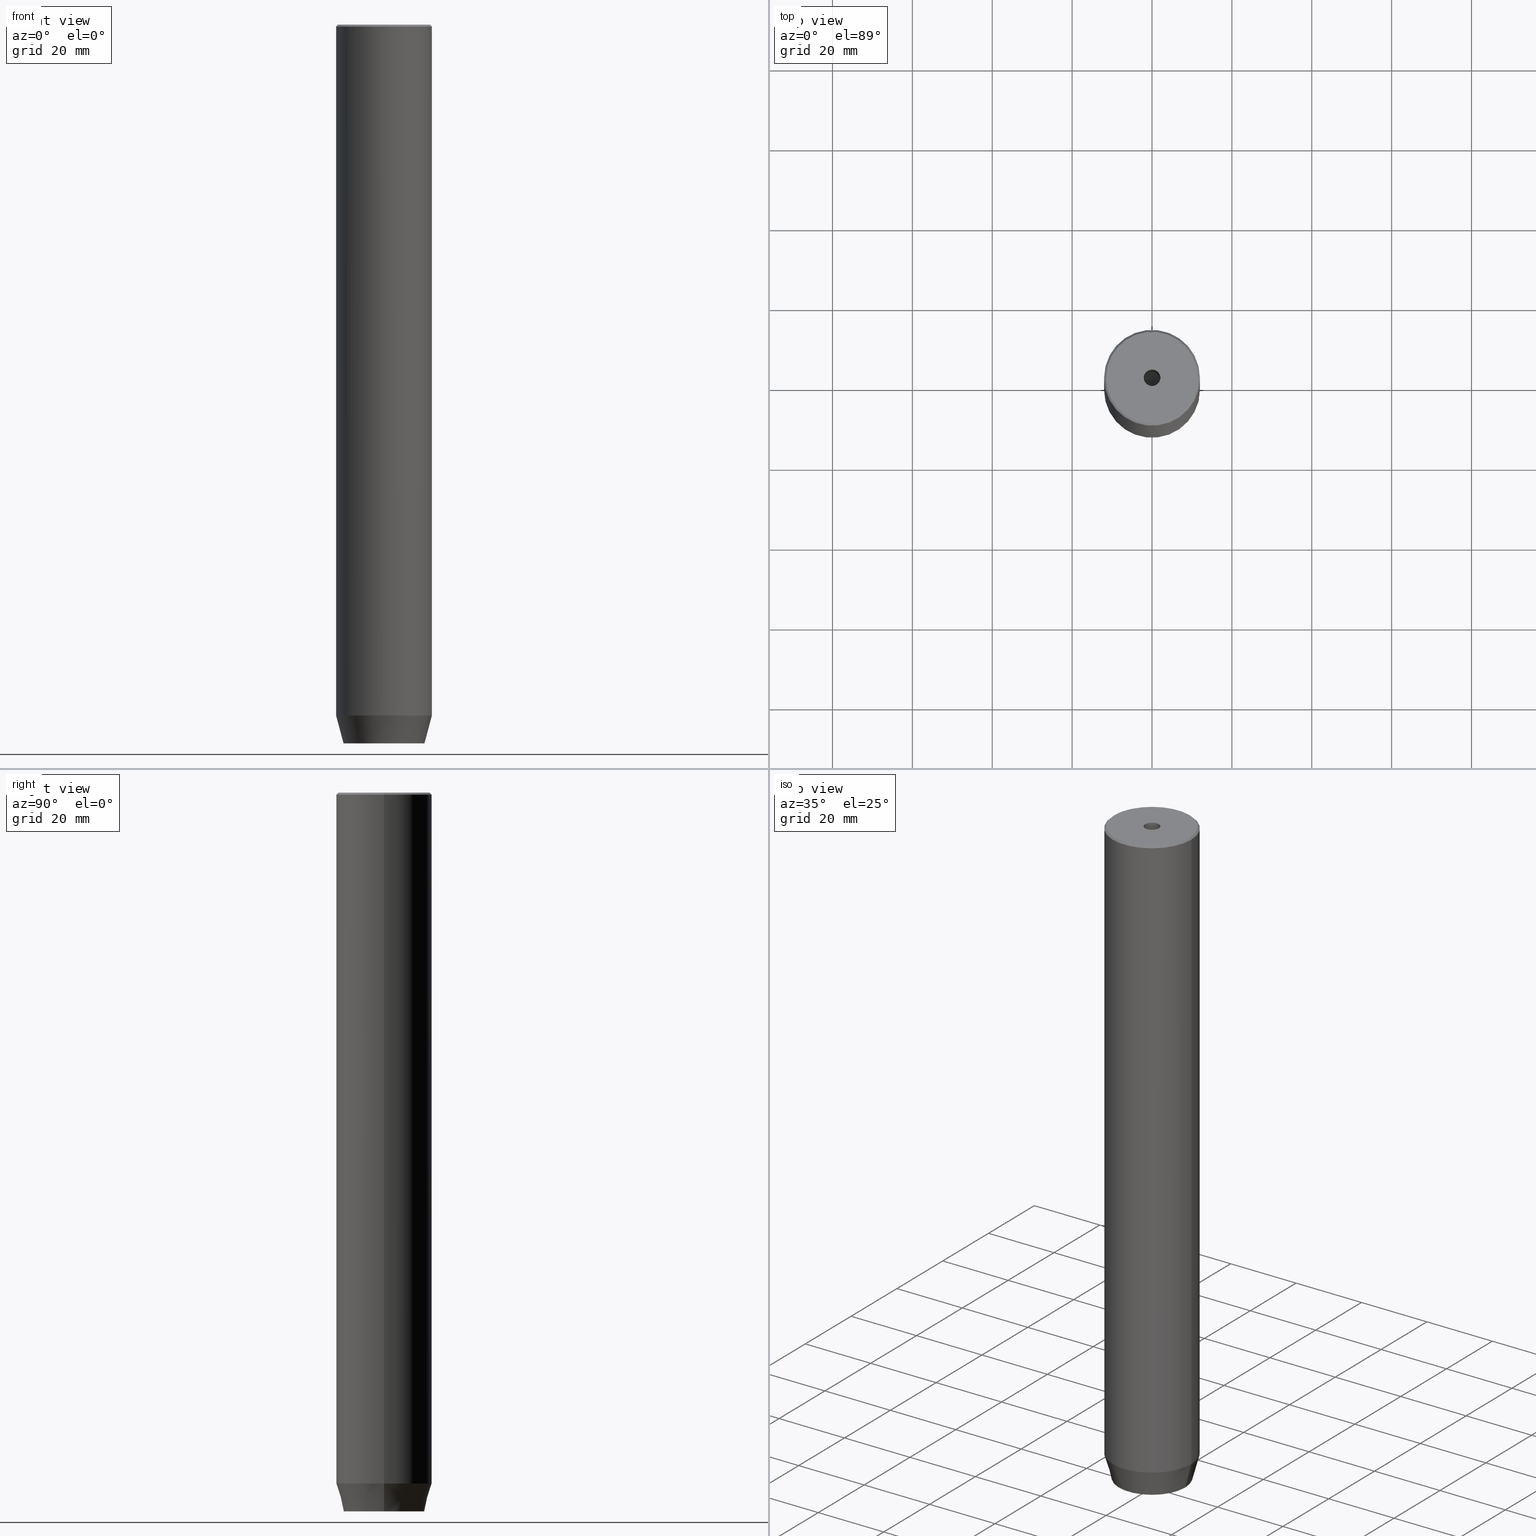
[diagram: canonical four-view strip — front | top / right | iso, engineering-drawing reading convention]
A machine part, canonical four-view strip (front | top / right | iso — engineering-drawing reading convention). The complete STEP part file that produces these views, byte-faithful:
ISO-10303-21;
HEADER;
FILE_DESCRIPTION (( 'STEP AP203' ),
    '1' );
FILE_NAME ('e657.STEP',
    '2024-01-02T17:14:55',
    ( '' ),
    ( '' ),
    'SwSTEP 2.0',
    'SolidWorks 2019',
    '' );
FILE_SCHEMA (( 'CONFIG_CONTROL_DESIGN' ));
ENDSEC;

DATA;
#1 = ORIENTED_EDGE ( 'NONE', *, *, #35, .T. ) ;
#2 = EDGE_LOOP ( 'NONE', ( #90, #121, #559, #438 ) ) ;
#3 = CALENDAR_DATE ( 2024, 2, 1 ) ;
#4 = EDGE_CURVE ( 'NONE', #230, #500, #580, .T. ) ;
#5 =( GEOMETRIC_REPRESENTATION_CONTEXT ( 3 ) GLOBAL_UNCERTAINTY_ASSIGNED_CONTEXT ( ( #414 ) ) GLOBAL_UNIT_ASSIGNED_CONTEXT ( ( #108, #276, #458 ) ) REPRESENTATION_CONTEXT ( 'NONE', 'WORKASPACE' ) );
#6 = ORIENTED_EDGE ( 'NONE', *, *, #358, .F. ) ;
#7 = EDGE_CURVE ( 'NONE', #221, #550, #141, .T. ) ;
#8 = ORIENTED_EDGE ( 'NONE', *, *, #293, .T. ) ;
#9 = VERTEX_POINT ( 'NONE', #450 ) ;
#10 = ORIENTED_EDGE ( 'NONE', *, *, #116, .F. ) ;
#11 = CARTESIAN_POINT ( 'NONE',  ( 4.000000000000000000, 0.000000000000000000, -177.1999999999999886 ) ) ;
#12 = VECTOR ( 'NONE', #552, 1000.000000000000000 ) ;
#13 = AXIS2_PLACEMENT_3D ( 'NONE', #268, #183, #390 ) ;
#14 = DIRECTION ( 'NONE',  ( -0.000000000000000000, -0.000000000000000000, 1.000000000000000000 ) ) ;
#15 = ORIENTED_EDGE ( 'NONE', *, *, #398, .F. ) ;
#16 = DIRECTION ( 'NONE',  ( 0.000000000000000000, 1.000000000000000000, 0.000000000000000000 ) ) ;
#17 = CARTESIAN_POINT ( 'NONE',  ( -4.000000000000000000, 2.309401076758503368, -177.1999999999999886 ) ) ;
#18 = DIRECTION ( 'NONE',  ( 1.000000000000000000, 0.000000000000000000, 0.000000000000000000 ) ) ;
#19 = LINE ( 'NONE', #89, #569 ) ;
#20 = VECTOR ( 'NONE', #286, 1000.000000000000000 ) ;
#21 = CC_DESIGN_SECURITY_CLASSIFICATION ( #199, ( #334 ) ) ;
#22 = EDGE_CURVE ( 'NONE', #500, #363, #296, .T. ) ;
#23 = EDGE_CURVE ( 'NONE', #363, #500, #420, .T. ) ;
#24 = DIRECTION ( 'NONE',  ( 1.000000000000000000, 0.000000000000000000, -0.000000000000000000 ) ) ;
#25 = AXIS2_PLACEMENT_3D ( 'NONE', #169, #145, #304 ) ;
#26 = EDGE_LOOP ( 'NONE', ( #278, #269, #545, #15 ) ) ;
#27 = LINE ( 'NONE', #71, #78 ) ;
#28 = LINE ( 'NONE', #396, #130 ) ;
#29 = APPLICATION_CONTEXT ( 'configuration controlled 3d designs of mechanical parts and assemblies' ) ;
#30 = ORIENTED_EDGE ( 'NONE', *, *, #252, .T. ) ;
#31 = EDGE_LOOP ( 'NONE', ( #512, #184, #502, #6 ) ) ;
#32 = DIRECTION ( 'NONE',  ( -0.2588190451025213501, 3.169619151431772337E-17, 0.9659258262890680902 ) ) ;
#33 = DIRECTION ( 'NONE',  ( 1.000000000000000000, 0.000000000000000000, 0.000000000000000000 ) ) ;
#34 = DIRECTION ( 'NONE',  ( 0.8660254037844385966, -0.5000000000000001110, 0.000000000000000000 ) ) ;
#35 = EDGE_CURVE ( 'NONE', #45, #243, #474, .T. ) ;
#36 = VECTOR ( 'NONE', #528, 1000.000000000000000 ) ;
#37 = CARTESIAN_POINT ( 'NONE',  ( -12.00000000000000000, 1.469576158976823947E-15, -173.0000000000000000 ) ) ;
#38 = ORIENTED_EDGE ( 'NONE', *, *, #251, .F. ) ;
#39 = VERTEX_POINT ( 'NONE', #250 ) ;
#40 = VERTEX_POINT ( 'NONE', #247 ) ;
#41 = ORIENTED_EDGE ( 'NONE', *, *, #4, .T. ) ;
#42 = SECURITY_CLASSIFICATION_LEVEL ( 'unclassified' ) ;
#43 = CC_DESIGN_DATE_AND_TIME_ASSIGNMENT ( #366, #585, ( #417 ) ) ;
#44 = ADVANCED_FACE ( 'NONE', ( #104 ), #159, .F. ) ;
#45 = VERTEX_POINT ( 'NONE', #220 ) ;
#46 = APPLICATION_PROTOCOL_DEFINITION ( 'international standard', 'config_control_design', 1994, #332 ) ;
#47 = AXIS2_PLACEMENT_3D ( 'NONE', #404, #586, #551 ) ;
#48 = CONICAL_SURFACE ( 'NONE', #216, 11.50000000000003553, 0.7853981633974621568 ) ;
#49 = FACE_OUTER_BOUND ( 'NONE', #26, .T. ) ;
#50 = EDGE_LOOP ( 'NONE', ( #8, #408 ) ) ;
#51 = CARTESIAN_POINT ( 'NONE',  ( -4.000000000000000000, 2.309401076758503368, -180.0000000000000000 ) ) ;
#52 = LINE ( 'NONE', #235, #456 ) ;
#53 = LINE ( 'NONE', #518, #238 ) ;
#54 = VERTEX_POINT ( 'NONE', #127 ) ;
#55 = CIRCLE ( 'NONE', #445, 11.50000000000003553 ) ;
#56 = CARTESIAN_POINT ( 'NONE',  ( -7.656934449090954900E-15, 0.000000000000000000, -31.26180729995787289 ) ) ;
#57 = CONICAL_SURFACE ( 'NONE', #338, 12.00000000000000000, 0.2617993877991500740 ) ;
#58 = CARTESIAN_POINT ( 'NONE',  ( 0.000000000000000000, 10.12435565298213547, -180.0000000000000000 ) ) ;
#59 = CARTESIAN_POINT ( 'NONE',  ( 2.099999999999998757, 0.000000000000000000, -1.990051048614449116E-16 ) ) ;
#60 = ADVANCED_FACE ( 'NONE', ( #76 ), #403, .F. ) ;
#61 = DIRECTION ( 'NONE',  ( 1.000000000000000000, 0.000000000000000000, 0.000000000000000000 ) ) ;
#62 = ORIENTED_EDGE ( 'NONE', *, *, #208, .T. ) ;
#63 = CONICAL_SURFACE ( 'NONE', #430, 11.50000000000003553, 0.7853981633974621568 ) ;
#64 = DIRECTION ( 'NONE',  ( 1.000000000000000000, 0.000000000000000000, 0.000000000000000000 ) ) ;
#65 = ADVANCED_FACE ( 'NONE', ( #345 ), #308, .F. ) ;
#66 = ORIENTED_EDGE ( 'NONE', *, *, #358, .T. ) ;
#67 = CLOSED_SHELL ( 'NONE', ( #475, #568, #511, #128, #81, #245, #144, #72, #380, #425, #405, #466, #44, #60, #166, #188, #196, #65, #153 ) ) ;
#68 = LOCAL_TIME ( 18, 14, 55.00000000000000000, #313 ) ;
#69 = LOCAL_TIME ( 18, 14, 55.00000000000000000, #546 ) ;
#70 = CARTESIAN_POINT ( 'NONE',  ( 2.099999999999994760, 0.000000000000000000, -30.00000000000000000 ) ) ;
#71 = CARTESIAN_POINT ( 'NONE',  ( 2.000000000000000444, 3.464101615137754386, -180.0000000000000000 ) ) ;
#72 = ADVANCED_FACE ( 'NONE', ( #397 ), #259, .T. ) ;
#73 = ORIENTED_EDGE ( 'NONE', *, *, #315, .F. ) ;
#74 = DIRECTION ( 'NONE',  ( 1.000000000000000000, 0.000000000000000000, 0.000000000000000000 ) ) ;
#75 = APPROVAL ( #496, 'NEUR�EN�' ) ;
#76 = FACE_OUTER_BOUND ( 'NONE', #327, .T. ) ;
#77 = DATE_AND_TIME ( #142, #476 ) ;
#78 = VECTOR ( 'NONE', #34, 1000.000000000000000 ) ;
#79 = DIRECTION ( 'NONE',  ( 0.5000000000000003331, -0.8660254037844385966, 0.000000000000000000 ) ) ;
#80 = ORIENTED_EDGE ( 'NONE', *, *, #336, .T. ) ;
#81 = ADVANCED_FACE ( 'NONE', ( #446 ), #165, .T. ) ;
#82 = ORIENTED_EDGE ( 'NONE', *, *, #272, .T. ) ;
#83 = PERSON_AND_ORGANIZATION_ROLE ( 'design_supplier' ) ;
#84 = PERSON_AND_ORGANIZATION ( #300, #204 ) ;
#85 = CARTESIAN_POINT ( 'NONE',  ( -12.00000000000000000, 1.469576158976823947E-15, -173.0000000000000000 ) ) ;
#86 = EDGE_LOOP ( 'NONE', ( #240, #506, #312, #131 ) ) ;
#87 = CONICAL_SURFACE ( 'NONE', #513, 12.00000000000000000, 0.2617993877991500740 ) ;
#88 = VECTOR ( 'NONE', #314, 999.9999999999998863 ) ;
#89 = CARTESIAN_POINT ( 'NONE',  ( -4.000000000000000000, 0.000000000000000000, -177.1999999999999886 ) ) ;
#90 = ORIENTED_EDGE ( 'NONE', *, *, #530, .F. ) ;
#91 = COORDINATED_UNIVERSAL_TIME_OFFSET ( 1, 0, .AHEAD. ) ;
#92 = EDGE_LOOP ( 'NONE', ( #180, #62, #539, #388 ) ) ;
#93 = DIRECTION ( 'NONE',  ( 1.000000000000000000, 0.000000000000000000, 0.000000000000000000 ) ) ;
#94 = DIRECTION ( 'NONE',  ( 1.000000000000000000, 0.000000000000000000, 0.000000000000000000 ) ) ;
#95 = VERTEX_POINT ( 'NONE', #361 ) ;
#96 = DIRECTION ( 'NONE',  ( 0.000000000000000000, 1.000000000000000000, 0.000000000000000000 ) ) ;
#97 = EDGE_LOOP ( 'NONE', ( #223, #558, #411, #418, #468, #82 ) ) ;
#98 = VECTOR ( 'NONE', #171, 1000.000000000000000 ) ;
#99 = CARTESIAN_POINT ( 'NONE',  ( 0.000000000000000000, 0.000000000000000000, 0.000000000000000000 ) ) ;
#100 = AXIS2_PLACEMENT_3D ( 'NONE', #469, #249, #258 ) ;
#101 = EDGE_CURVE ( 'NONE', #330, #490, #541, .T. ) ;
#102 = EDGE_CURVE ( 'NONE', #40, #95, #119, .T. ) ;
#103 = DIRECTION ( 'NONE',  ( 0.000000000000000000, 0.000000000000000000, -1.000000000000000000 ) ) ;
#104 = FACE_OUTER_BOUND ( 'NONE', #395, .T. ) ;
#105 = VECTOR ( 'NONE', #149, 1000.000000000000114 ) ;
#106 = LINE ( 'NONE', #292, #524 ) ;
#107 = FACE_OUTER_BOUND ( 'NONE', #464, .T. ) ;
#108 =( LENGTH_UNIT ( ) NAMED_UNIT ( * ) SI_UNIT ( .MILLI., .METRE. ) );
#109 = FACE_BOUND ( 'NONE', #509, .T. ) ;
#110 = DIRECTION ( 'NONE',  ( 1.000000000000000000, 0.000000000000000000, 0.000000000000000000 ) ) ;
#111 = DIRECTION ( 'NONE',  ( 1.000000000000000000, 0.000000000000000000, 0.000000000000000000 ) ) ;
#112 = ORIENTED_EDGE ( 'NONE', *, *, #315, .T. ) ;
#113 = DIRECTION ( 'NONE',  ( 0.8660254037844387076, 0.5000000000000001110, 0.000000000000000000 ) ) ;
#114 = AXIS2_PLACEMENT_3D ( 'NONE', #392, #473, #206 ) ;
#115 = LINE ( 'NONE', #520, #36 ) ;
#116 = EDGE_CURVE ( 'NONE', #95, #39, #161, .T. ) ;
#117 = CARTESIAN_POINT ( 'NONE',  ( -11.50000000000003553, 0.000000000000000000, 0.000000000000000000 ) ) ;
#118 = DIRECTION ( 'NONE',  ( 1.000000000000000000, 0.000000000000000000, 0.000000000000000000 ) ) ;
#119 = LINE ( 'NONE', #427, #98 ) ;
#120 = DIRECTION ( 'NONE',  ( -0.000000000000000000, -0.000000000000000000, 1.000000000000000000 ) ) ;
#121 = ORIENTED_EDGE ( 'NONE', *, *, #22, .T. ) ;
#122 = CARTESIAN_POINT ( 'NONE',  ( -4.000000000000000000, -2.309401076758503368, -180.0000000000000000 ) ) ;
#123 = EDGE_LOOP ( 'NONE', ( #356, #287, #413, #311 ) ) ;
#124 = CALENDAR_DATE ( 2024, 2, 1 ) ;
#125 = CARTESIAN_POINT ( 'NONE',  ( 0.000000000000000000, 0.000000000000000000, 0.000000000000000000 ) ) ;
#126 = CARTESIAN_POINT ( 'NONE',  ( 0.000000000000000000, 0.000000000000000000, -1.990051048614449116E-16 ) ) ;
#127 = CARTESIAN_POINT ( 'NONE',  ( 12.00000000000000000, 0.000000000000000000, -0.4999999999999501510 ) ) ;
#128 = ADVANCED_FACE ( 'NONE', ( #471 ), #87, .T. ) ;
#129 = EDGE_LOOP ( 'NONE', ( #137, #136, #275, #1 ) ) ;
#130 = VECTOR ( 'NONE', #548, 1000.000000000000114 ) ;
#131 = ORIENTED_EDGE ( 'NONE', *, *, #207, .F. ) ;
#132 = ORIENTED_EDGE ( 'NONE', *, *, #531, .F. ) ;
#133 = ORIENTED_EDGE ( 'NONE', *, *, #116, .T. ) ;
#134 = PERSON_AND_ORGANIZATION ( #300, #204 ) ;
#135 = EDGE_LOOP ( 'NONE', ( #132, #433, #485 ) ) ;
#136 = ORIENTED_EDGE ( 'NONE', *, *, #237, .F. ) ;
#137 = ORIENTED_EDGE ( 'NONE', *, *, #477, .T. ) ;
#138 = APPROVAL_STATUS ( 'not_yet_approved' ) ;
#139 = CARTESIAN_POINT ( 'NONE',  ( 0.000000000000000000, 0.000000000000000000, -30.00000000000000000 ) ) ;
#140 = ORIENTED_EDGE ( 'NONE', *, *, #35, .F. ) ;
#141 = CIRCLE ( 'NONE', #214, 2.099999999999998757 ) ;
#142 = CALENDAR_DATE ( 2024, 2, 1 ) ;
#143 = LOCAL_TIME ( 18, 14, 55.00000000000000000, #91 ) ;
#144 = ADVANCED_FACE ( 'NONE', ( #109, #294 ), #342, .T. ) ;
#145 = DIRECTION ( 'NONE',  ( -0.000000000000000000, -0.000000000000000000, 1.000000000000000000 ) ) ;
#146 = DIRECTION ( 'NONE',  ( 1.000000000000000000, 0.000000000000000000, 0.000000000000000000 ) ) ;
#147 = VERTEX_POINT ( 'NONE', #431 ) ;
#148 = VERTEX_POINT ( 'NONE', #122 ) ;
#149 = DIRECTION ( 'NONE',  ( -0.8660254037844384856, 0.5000000000000002220, 0.000000000000000000 ) ) ;
#150 = EDGE_LOOP ( 'NONE', ( #256, #41, #264, #38 ) ) ;
#151 = APPROVAL ( #138, 'NEUR�EN�' ) ;
#152 = ORIENTED_EDGE ( 'NONE', *, *, #336, .F. ) ;
#153 = ADVANCED_FACE ( 'NONE', ( #301 ), #394, .F. ) ;
#154 = CC_DESIGN_APPROVAL ( #75, ( #334 ) ) ;
#155 = CARTESIAN_POINT ( 'NONE',  ( 4.336808689942017736E-16, -4.618802153517006737, -177.1999999999999886 ) ) ;
#156 = PLANE ( 'NONE',  #100 ) ;
#157 = CC_DESIGN_PERSON_AND_ORGANIZATION_ASSIGNMENT ( #84, #83, ( #334 ) ) ;
#158 = VECTOR ( 'NONE', #379, 1000.000000000000000 ) ;
#159 = PLANE ( 'NONE',  #409 ) ;
#160 = CARTESIAN_POINT ( 'NONE',  ( 0.000000000000000000, 4.618802153517006737, -180.0000000000000000 ) ) ;
#161 = LINE ( 'NONE', #201, #516 ) ;
#162 = LINE ( 'NONE', #436, #226 ) ;
#163 = DIRECTION ( 'NONE',  ( 0.8660254037844385966, -0.5000000000000001110, 0.000000000000000000 ) ) ;
#164 = CARTESIAN_POINT ( 'NONE',  ( -2.000000000000000000, 3.464101615137754830, -180.0000000000000000 ) ) ;
#165 = CYLINDRICAL_SURFACE ( 'NONE', #25, 12.00000000000000000 ) ;
#166 = ADVANCED_FACE ( 'NONE', ( #348 ), #481, .F. ) ;
#167 = DIRECTION ( 'NONE',  ( -0.8660254037844384856, -0.5000000000000002220, 0.000000000000000000 ) ) ;
#168 = DIRECTION ( 'NONE',  ( -0.000000000000000000, -0.000000000000000000, 1.000000000000000000 ) ) ;
#169 = CARTESIAN_POINT ( 'NONE',  ( 0.000000000000000000, 0.000000000000000000, 0.000000000000000000 ) ) ;
#170 = PLANE ( 'NONE',  #454 ) ;
#171 = DIRECTION ( 'NONE',  ( -0.000000000000000000, -0.000000000000000000, -1.000000000000000000 ) ) ;
#172 = CARTESIAN_POINT ( 'NONE',  ( -4.000000000000000000, 2.309401076758503368, -177.1999999999999886 ) ) ;
#173 = APPROVAL_DATE_TIME ( #583, #320 ) ;
#174 = CARTESIAN_POINT ( 'NONE',  ( -2.000000000000000000, 3.464101615137754830, -177.1999999999999886 ) ) ;
#175 = CYLINDRICAL_SURFACE ( 'NONE', #434, 2.099999999999996980 ) ;
#176 = EDGE_CURVE ( 'NONE', #45, #9, #246, .T. ) ;
#177 = EDGE_LOOP ( 'NONE', ( #561, #452, #415, #10, #373, #444 ) ) ;
#178 = PERSON_AND_ORGANIZATION ( #300, #204 ) ;
#179 = LINE ( 'NONE', #117, #544 ) ;
#180 = ORIENTED_EDGE ( 'NONE', *, *, #4, .F. ) ;
#181 = PERSON_AND_ORGANIZATION ( #300, #204 ) ;
#182 = VECTOR ( 'NONE', #113, 999.9999999999998863 ) ;
#183 = DIRECTION ( 'NONE',  ( -0.5000000000000000000, 0.8660254037844387076, 0.000000000000000000 ) ) ;
#184 = ORIENTED_EDGE ( 'NONE', *, *, #200, .T. ) ;
#185 = DIRECTION ( 'NONE',  ( -1.000000000000000000, 0.000000000000000000, 0.000000000000000000 ) ) ;
#186 = APPROVAL_ROLE ( '' ) ;
#187 = PLANE ( 'NONE',  #47 ) ;
#188 = ADVANCED_FACE ( 'NONE', ( #344 ), #297, .F. ) ;
#189 = ORIENTED_EDGE ( 'NONE', *, *, #102, .T. ) ;
#190 = DATE_AND_TIME ( #124, #310 ) ;
#191 = CARTESIAN_POINT ( 'NONE',  ( 0.000000000000000000, 0.000000000000000000, -0.4999999999999501510 ) ) ;
#192 = DIRECTION ( 'NONE',  ( 1.000000000000000000, 0.000000000000000000, 0.000000000000000000 ) ) ;
#193 = AXIS2_PLACEMENT_3D ( 'NONE', #492, #120, #74 ) ;
#194 = VECTOR ( 'NONE', #241, 1000.000000000000000 ) ;
#195 = DIRECTION ( 'NONE',  ( 1.000000000000000000, 0.000000000000000000, 0.000000000000000000 ) ) ;
#196 = ADVANCED_FACE ( 'NONE', ( #265 ), #187, .T. ) ;
#197 = CARTESIAN_POINT ( 'NONE',  ( 11.50000000000003553, 1.438959988998142132E-15, 0.000000000000000000 ) ) ;
#198 = LINE ( 'NONE', #164, #182 ) ;
#199 = SECURITY_CLASSIFICATION ( '', '', #42 ) ;
#200 = EDGE_CURVE ( 'NONE', #210, #550, #402, .T. ) ;
#201 = CARTESIAN_POINT ( 'NONE',  ( 2.000000000000000888, -3.464101615137754386, -180.0000000000000000 ) ) ;
#202 = DIRECTION ( 'NONE',  ( -0.000000000000000000, 0.000000000000000000, -1.000000000000000000 ) ) ;
#203 = AXIS2_PLACEMENT_3D ( 'NONE', #582, #14, #195 ) ;
#204 = ORGANIZATION ( 'NEUR�EN�', 'NEUR�EN�', '' ) ;
#205 = DIRECTION ( 'NONE',  ( 0.7071067811865574537, 8.659560562355054885E-17, -0.7071067811865376918 ) ) ;
#206 = DIRECTION ( 'NONE',  ( 1.000000000000000000, 0.000000000000000000, 0.000000000000000000 ) ) ;
#207 = EDGE_CURVE ( 'NONE', #54, #482, #225, .T. ) ;
#208 = EDGE_CURVE ( 'NONE', #230, #410, #498, .T. ) ;
#209 = CARTESIAN_POINT ( 'NONE',  ( -10.12435565298213547, 1.354726066681111050E-15, -180.0000000000000000 ) ) ;
#210 = VERTEX_POINT ( 'NONE', #467 ) ;
#211 = EDGE_LOOP ( 'NONE', ( #368, #343, #254, #553 ) ) ;
#212 = CARTESIAN_POINT ( 'NONE',  ( -2.099999999999994760, 2.571758278209435054E-16, -30.00000000000000000 ) ) ;
#213 = CARTESIAN_POINT ( 'NONE',  ( -12.00000000000000000, 1.469576158976823947E-15, -0.4999999999999501510 ) ) ;
#214 = AXIS2_PLACEMENT_3D ( 'NONE', #126, #483, #576 ) ;
#215 = ORIENTED_EDGE ( 'NONE', *, *, #288, .F. ) ;
#216 = AXIS2_PLACEMENT_3D ( 'NONE', #581, #351, #435 ) ;
#217 = PRODUCT ( 'e657', 'e657', '', ( #319 ) ) ;
#218 = DIRECTION ( 'NONE',  ( -0.5000000000000003331, -0.8660254037844385966, 0.000000000000000000 ) ) ;
#219 = DIRECTION ( 'NONE',  ( 1.000000000000000000, 0.000000000000000000, 0.000000000000000000 ) ) ;
#220 = CARTESIAN_POINT ( 'NONE',  ( 0.000000000000000000, 4.618802153517006737, -177.1999999999999886 ) ) ;
#221 = VERTEX_POINT ( 'NONE', #59 ) ;
#222 = VERTEX_POINT ( 'NONE', #70 ) ;
#223 = ORIENTED_EDGE ( 'NONE', *, *, #382, .T. ) ;
#224 = CARTESIAN_POINT ( 'NONE',  ( 0.000000000000000000, 0.000000000000000000, 0.000000000000000000 ) ) ;
#225 = CIRCLE ( 'NONE', #555, 12.00000000000000000 ) ;
#226 = VECTOR ( 'NONE', #167, 1000.000000000000114 ) ;
#227 = PERSON_AND_ORGANIZATION_ROLE ( 'creator' ) ;
#228 = EDGE_CURVE ( 'NONE', #482, #54, #385, .T. ) ;
#229 = LINE ( 'NONE', #329, #290 ) ;
#230 = VERTEX_POINT ( 'NONE', #209 ) ;
#231 = PERSON_AND_ORGANIZATION ( #300, #204 ) ;
#232 = DIRECTION ( 'NONE',  ( -0.000000000000000000, -0.000000000000000000, 1.000000000000000000 ) ) ;
#233 = ORIENTED_EDGE ( 'NONE', *, *, #208, .F. ) ;
#234 = CARTESIAN_POINT ( 'NONE',  ( -2.000000000000000888, -3.464101615137754386, -177.1999999999999886 ) ) ;
#235 = CARTESIAN_POINT ( 'NONE',  ( -4.000000000000000000, 0.000000000000000000, -180.0000000000000000 ) ) ;
#236 = AXIS2_PLACEMENT_3D ( 'NONE', #261, #79, #484 ) ;
#237 = EDGE_CURVE ( 'NONE', #9, #486, #115, .T. ) ;
#238 = VECTOR ( 'NONE', #280, 1000.000000000000000 ) ;
#239 = FACE_OUTER_BOUND ( 'NONE', #92, .T. ) ;
#240 = ORIENTED_EDGE ( 'NONE', *, *, #424, .F. ) ;
#241 = DIRECTION ( 'NONE',  ( -0.000000000000000000, -0.000000000000000000, -1.000000000000000000 ) ) ;
#242 = DIRECTION ( 'NONE',  ( -0.000000000000000000, -0.000000000000000000, 1.000000000000000000 ) ) ;
#243 = VERTEX_POINT ( 'NONE', #160 ) ;
#244 = APPROVAL_PERSON_ORGANIZATION ( #134, #151, #186 ) ;
#245 = ADVANCED_FACE ( 'NONE', ( #340, #107 ), #170, .T. ) ;
#246 = LINE ( 'NONE', #479, #453 ) ;
#247 = CARTESIAN_POINT ( 'NONE',  ( 4.000000000000000000, -2.309401076758502480, -177.1999999999999886 ) ) ;
#248 = CARTESIAN_POINT ( 'NONE',  ( 0.000000000000000000, 0.000000000000000000, -173.0000000000000000 ) ) ;
#249 = DIRECTION ( 'NONE',  ( -1.000000000000000000, 0.000000000000000000, 0.000000000000000000 ) ) ;
#250 = CARTESIAN_POINT ( 'NONE',  ( 4.336808689942017736E-16, -4.618802153517006737, -180.0000000000000000 ) ) ;
#251 = EDGE_CURVE ( 'NONE', #410, #363, #562, .T. ) ;
#252 = EDGE_CURVE ( 'NONE', #547, #39, #331, .T. ) ;
#253 = AXIS2_PLACEMENT_3D ( 'NONE', #529, #24, #202 ) ;
#254 = ORIENTED_EDGE ( 'NONE', *, *, #271, .F. ) ;
#255 = AXIS2_PLACEMENT_3D ( 'NONE', #307, #407, #219 ) ;
#256 = ORIENTED_EDGE ( 'NONE', *, *, #288, .T. ) ;
#257 = CARTESIAN_POINT ( 'NONE',  ( 0.000000000000000000, 0.000000000000000000, 0.000000000000000000 ) ) ;
#258 = DIRECTION ( 'NONE',  ( 0.000000000000000000, 0.000000000000000000, 1.000000000000000000 ) ) ;
#259 = CYLINDRICAL_SURFACE ( 'NONE', #391, 12.00000000000000000 ) ;
#260 = ORIENTED_EDGE ( 'NONE', *, *, #252, .F. ) ;
#261 = CARTESIAN_POINT ( 'NONE',  ( 2.000000000000000888, -3.464101615137754386, -177.1999999999999886 ) ) ;
#262 = ORIENTED_EDGE ( 'NONE', *, *, #7, .T. ) ;
#263 = CONICAL_SURFACE ( 'NONE', #570, 2.099999999999994760, 1.029744258676652535 ) ;
#264 = ORIENTED_EDGE ( 'NONE', *, *, #23, .F. ) ;
#265 = FACE_OUTER_BOUND ( 'NONE', #97, .T. ) ;
#266 = ORIENTED_EDGE ( 'NONE', *, *, #461, .T. ) ;
#267 = APPROVAL_ROLE ( '' ) ;
#268 = CARTESIAN_POINT ( 'NONE',  ( -2.000000000000000000, 3.464101615137754830, -177.1999999999999886 ) ) ;
#269 = ORIENTED_EDGE ( 'NONE', *, *, #424, .T. ) ;
#270 = DATE_TIME_ROLE ( 'classification_date' ) ;
#271 = EDGE_CURVE ( 'NONE', #9, #40, #465, .T. ) ;
#272 = EDGE_CURVE ( 'NONE', #147, #584, #19, .T. ) ;
#273 = AXIS2_PLACEMENT_3D ( 'NONE', #299, #441, #33 ) ;
#274 = CC_DESIGN_APPROVAL ( #320, ( #199 ) ) ;
#275 = ORIENTED_EDGE ( 'NONE', *, *, #176, .F. ) ;
#276 =( NAMED_UNIT ( * ) PLANE_ANGLE_UNIT ( ) SI_UNIT ( $, .RADIAN. ) );
#277 = CARTESIAN_POINT ( 'NONE',  ( 12.00000000000000000, 0.000000000000000000, -173.0000000000000000 ) ) ;
#278 = ORIENTED_EDGE ( 'NONE', *, *, #101, .F. ) ;
#279 = PERSON_AND_ORGANIZATION ( #300, #204 ) ;
#280 = DIRECTION ( 'NONE',  ( -0.000000000000000000, -0.000000000000000000, 1.000000000000000000 ) ) ;
#281 = ORIENTED_EDGE ( 'NONE', *, *, #447, .T. ) ;
#282 = CARTESIAN_POINT ( 'NONE',  ( 12.00000000000000000, 0.000000000000000000, -173.0000000000000000 ) ) ;
#283 = CARTESIAN_POINT ( 'NONE',  ( 4.000000000000000000, 2.309401076758503368, -180.0000000000000000 ) ) ;
#284 = CIRCLE ( 'NONE', #346, 2.099999999999994760 ) ;
#285 = DIRECTION ( 'NONE',  ( 1.000000000000000000, 0.000000000000000000, 0.000000000000000000 ) ) ;
#286 = DIRECTION ( 'NONE',  ( 0.2588190451025213501, 0.000000000000000000, 0.9659258262890680902 ) ) ;
#287 = ORIENTED_EDGE ( 'NONE', *, *, #530, .T. ) ;
#288 = EDGE_CURVE ( 'NONE', #410, #230, #375, .T. ) ;
#289 = AXIS2_PLACEMENT_3D ( 'NONE', #470, #291, #64 ) ;
#290 = VECTOR ( 'NONE', #523, 1000.000000000000000 ) ;
#291 = DIRECTION ( 'NONE',  ( 0.000000000000000000, 0.000000000000000000, -1.000000000000000000 ) ) ;
#292 = CARTESIAN_POINT ( 'NONE',  ( 2.099999999999994760, 0.000000000000000000, -30.00000000000000000 ) ) ;
#293 = EDGE_CURVE ( 'NONE', #490, #330, #55, .T. ) ;
#294 = FACE_OUTER_BOUND ( 'NONE', #50, .T. ) ;
#295 = DIRECTION ( 'NONE',  ( -0.7071067811865574537, 0.000000000000000000, -0.7071067811865376918 ) ) ;
#296 = CIRCLE ( 'NONE', #193, 12.00000000000000000 ) ;
#297 = PLANE ( 'NONE',  #429 ) ;
#298 = CIRCLE ( 'NONE', #565, 2.099999999999994760 ) ;
#299 = CARTESIAN_POINT ( 'NONE',  ( 0.000000000000000000, 0.000000000000000000, -30.00000000000000000 ) ) ;
#300 = PERSON ( 'NEUR�EN�', 'NEUR�EN�', 'NEUR�EN�', ('NEUR�EN�'), ('NEUR�EN�'), ('NEUR�EN�') ) ;
#301 = FACE_OUTER_BOUND ( 'NONE', #349, .T. ) ;
#302 = ORIENTED_EDGE ( 'NONE', *, *, #382, .F. ) ;
#303 = CC_DESIGN_PERSON_AND_ORGANIZATION_ASSIGNMENT ( #178, #227, ( #417 ) ) ;
#304 = DIRECTION ( 'NONE',  ( 1.000000000000000000, 0.000000000000000000, 0.000000000000000000 ) ) ;
#305 = CARTESIAN_POINT ( 'NONE',  ( 4.000000000000000000, 0.000000000000000000, -180.0000000000000000 ) ) ;
#306 = ORIENTED_EDGE ( 'NONE', *, *, #531, .T. ) ;
#307 = CARTESIAN_POINT ( 'NONE',  ( 0.000000000000000000, 0.000000000000000000, 0.000000000000000000 ) ) ;
#308 = CONICAL_SURFACE ( 'NONE', #273, 2.099999999999994760, 1.029744258676652535 ) ;
#309 = AXIS2_PLACEMENT_3D ( 'NONE', #515, #460, #61 ) ;
#310 = LOCAL_TIME ( 18, 14, 55.00000000000000000, #491 ) ;
#311 = ORIENTED_EDGE ( 'NONE', *, *, #549, .F. ) ;
#312 = ORIENTED_EDGE ( 'NONE', *, *, #398, .T. ) ;
#313 = COORDINATED_UNIVERSAL_TIME_OFFSET ( 1, 0, .AHEAD. ) ;
#314 = DIRECTION ( 'NONE',  ( 0.8660254037844387076, 0.5000000000000001110, 0.000000000000000000 ) ) ;
#315 = EDGE_CURVE ( 'NONE', #584, #323, #426, .T. ) ;
#316 = EDGE_CURVE ( 'NONE', #550, #221, #557, .T. ) ;
#317 = PERSON_AND_ORGANIZATION ( #300, #204 ) ;
#318 = CARTESIAN_POINT ( 'NONE',  ( -2.000000000000000888, -3.464101615137754386, -177.1999999999999886 ) ) ;
#319 = MECHANICAL_CONTEXT ( 'NONE', #332, 'mechanical' ) ;
#320 = APPROVAL ( #463, 'NEUR�EN�' ) ;
#321 = VECTOR ( 'NONE', #556, 1000.000000000000000 ) ;
#322 = AXIS2_PLACEMENT_3D ( 'NONE', #510, #377, #94 ) ;
#323 = VERTEX_POINT ( 'NONE', #51 ) ;
#324 = PERSON_AND_ORGANIZATION ( #300, #204 ) ;
#325 = DIRECTION ( 'NONE',  ( -0.000000000000000000, -0.000000000000000000, 1.000000000000000000 ) ) ;
#326 = EDGE_LOOP ( 'NONE', ( #462, #140, #302, #112 ) ) ;
#327 = EDGE_LOOP ( 'NONE', ( #133, #260, #508, #189 ) ) ;
#328 = CARTESIAN_POINT ( 'NONE',  ( 4.336808689942017736E-16, -4.618802153517006737, -177.1999999999999886 ) ) ;
#329 = CARTESIAN_POINT ( 'NONE',  ( -12.00000000000000000, 1.469576158976823947E-15, 0.000000000000000000 ) ) ;
#330 = VERTEX_POINT ( 'NONE', #197 ) ;
#331 = LINE ( 'NONE', #328, #194 ) ;
#332 = APPLICATION_CONTEXT ( 'configuration controlled 3d designs of mechanical parts and assemblies' ) ;
#333 = AXIS2_PLACEMENT_3D ( 'NONE', #257, #532, #111 ) ;
#334 = PRODUCT_DEFINITION_FORMATION_WITH_SPECIFIED_SOURCE ( 'LIBOVOLN�', '', #217, .NOT_KNOWN. ) ;
#335 = CARTESIAN_POINT ( 'NONE',  ( 0.000000000000000000, 4.618802153517006737, -177.1999999999999886 ) ) ;
#336 = EDGE_CURVE ( 'NONE', #222, #210, #284, .T. ) ;
#337 = CC_DESIGN_PERSON_AND_ORGANIZATION_ASSIGNMENT ( #181, #540, ( #334 ) ) ;
#338 = AXIS2_PLACEMENT_3D ( 'NONE', #423, #341, #521 ) ;
#339 = EDGE_CURVE ( 'NONE', #210, #222, #298, .T. ) ;
#340 = FACE_BOUND ( 'NONE', #177, .T. ) ;
#341 = DIRECTION ( 'NONE',  ( -0.000000000000000000, -0.000000000000000000, 1.000000000000000000 ) ) ;
#342 = PLANE ( 'NONE',  #114 ) ;
#343 = ORIENTED_EDGE ( 'NONE', *, *, #102, .F. ) ;
#344 = FACE_OUTER_BOUND ( 'NONE', #129, .T. ) ;
#345 = FACE_OUTER_BOUND ( 'NONE', #371, .T. ) ;
#346 = AXIS2_PLACEMENT_3D ( 'NONE', #381, #505, #370 ) ;
#347 = CC_DESIGN_PERSON_AND_ORGANIZATION_ASSIGNMENT ( #317, #369, ( #217 ) ) ;
#348 = FACE_OUTER_BOUND ( 'NONE', #211, .T. ) ;
#349 = EDGE_LOOP ( 'NONE', ( #457, #152, #66, #262 ) ) ;
#350 = DIRECTION ( 'NONE',  ( 1.000000000000000000, 0.000000000000000000, 0.000000000000000000 ) ) ;
#351 = DIRECTION ( 'NONE',  ( 0.000000000000000000, 0.000000000000000000, -1.000000000000000000 ) ) ;
#352 = APPLICATION_PROTOCOL_DEFINITION ( 'international standard', 'config_control_design', 1994, #29 ) ;
#353 = DIRECTION ( 'NONE',  ( -0.000000000000000000, -0.000000000000000000, 1.000000000000000000 ) ) ;
#354 = DIRECTION ( 'NONE',  ( 0.8660254037844384856, -0.5000000000000002220, 0.000000000000000000 ) ) ;
#355 = PRODUCT_DEFINITION_SHAPE ( 'NONE', 'NONE',  #417 ) ;
#356 = ORIENTED_EDGE ( 'NONE', *, *, #23, .T. ) ;
#357 = DATE_AND_TIME ( #412, #68 ) ;
#358 = EDGE_CURVE ( 'NONE', #222, #221, #419, .T. ) ;
#359 = AXIS2_PLACEMENT_3D ( 'NONE', #536, #503, #93 ) ;
#360 = AXIS2_PLACEMENT_3D ( 'NONE', #367, #493, #285 ) ;
#361 = CARTESIAN_POINT ( 'NONE',  ( 4.000000000000000000, -2.309401076758502480, -180.0000000000000000 ) ) ;
#362 = EDGE_CURVE ( 'NONE', #148, #323, #52, .T. ) ;
#363 = VERTEX_POINT ( 'NONE', #282 ) ;
#364 = CC_DESIGN_APPROVAL ( #151, ( #417 ) ) ;
#365 = VERTEX_POINT ( 'NONE', #56 ) ;
#366 = DATE_AND_TIME ( #3, #69 ) ;
#367 = CARTESIAN_POINT ( 'NONE',  ( 0.000000000000000000, 0.000000000000000000, -180.0000000000000000 ) ) ;
#368 = ORIENTED_EDGE ( 'NONE', *, *, #439, .T. ) ;
#369 = PERSON_AND_ORGANIZATION_ROLE ( 'design_owner' ) ;
#370 = DIRECTION ( 'NONE',  ( 1.000000000000000000, 0.000000000000000000, 0.000000000000000000 ) ) ;
#371 = EDGE_LOOP ( 'NONE', ( #449, #306, #80 ) ) ;
#372 = PERSON_AND_ORGANIZATION_ROLE ( 'classification_officer' ) ;
#373 = ORIENTED_EDGE ( 'NONE', *, *, #439, .F. ) ;
#374 = CARTESIAN_POINT ( 'NONE',  ( 2.099999999999996980, 0.000000000000000000, 0.000000000000000000 ) ) ;
#375 = CIRCLE ( 'NONE', #309, 10.12435565298213547 ) ;
#376 = CC_DESIGN_PERSON_AND_ORGANIZATION_ASSIGNMENT ( #279, #372, ( #199 ) ) ;
#377 = DIRECTION ( 'NONE',  ( -0.000000000000000000, -0.000000000000000000, 1.000000000000000000 ) ) ;
#378 = ORIENTED_EDGE ( 'NONE', *, *, #272, .F. ) ;
#379 = DIRECTION ( 'NONE',  ( -0.000000000000000000, -0.000000000000000000, -1.000000000000000000 ) ) ;
#380 = ADVANCED_FACE ( 'NONE', ( #239 ), #57, .T. ) ;
#381 = CARTESIAN_POINT ( 'NONE',  ( 0.000000000000000000, 0.000000000000000000, -30.00000000000000000 ) ) ;
#382 = EDGE_CURVE ( 'NONE', #584, #45, #525, .T. ) ;
#383 = VECTOR ( 'NONE', #519, 1000.000000000000000 ) ;
#384 = LINE ( 'NONE', #566, #579 ) ;
#385 = CIRCLE ( 'NONE', #289, 12.00000000000000000 ) ;
#386 = VECTOR ( 'NONE', #472, 1000.000000000000000 ) ;
#387 = CARTESIAN_POINT ( 'NONE',  ( 0.000000000000000000, 0.000000000000000000, -30.00000000000000000 ) ) ;
#388 = ORIENTED_EDGE ( 'NONE', *, *, #22, .F. ) ;
#389 = DIRECTION ( 'NONE',  ( 0.5000000000000001110, 0.8660254037844385966, -0.000000000000000000 ) ) ;
#390 = DIRECTION ( 'NONE',  ( -0.8660254037844385966, -0.4999999999999999445, 0.000000000000000000 ) ) ;
#391 = AXIS2_PLACEMENT_3D ( 'NONE', #400, #577, #350 ) ;
#392 = CARTESIAN_POINT ( 'NONE',  ( 0.000000000000000000, 0.000000000000000000, 0.000000000000000000 ) ) ;
#393 = FACE_OUTER_BOUND ( 'NONE', #86, .T. ) ;
#394 = CYLINDRICAL_SURFACE ( 'NONE', #333, 2.099999999999996980 ) ;
#395 = EDGE_LOOP ( 'NONE', ( #281, #406, #535, #30 ) ) ;
#396 = CARTESIAN_POINT ( 'NONE',  ( -2.000000000000000888, -3.464101615137754386, -180.0000000000000000 ) ) ;
#397 = FACE_OUTER_BOUND ( 'NONE', #2, .T. ) ;
#398 = EDGE_CURVE ( 'NONE', #490, #482, #179, .T. ) ;
#399 = APPROVAL_PERSON_ORGANIZATION ( #231, #75, #267 ) ;
#400 = CARTESIAN_POINT ( 'NONE',  ( 0.000000000000000000, 0.000000000000000000, 0.000000000000000000 ) ) ;
#401 = CALENDAR_DATE ( 2024, 2, 1 ) ;
#402 = LINE ( 'NONE', #459, #543 ) ;
#403 = PLANE ( 'NONE',  #236 ) ;
#404 = CARTESIAN_POINT ( 'NONE',  ( 0.000000000000000000, 0.000000000000000000, -177.1999999999999886 ) ) ;
#405 = ADVANCED_FACE ( 'NONE', ( #448 ), #488, .F. ) ;
#406 = ORIENTED_EDGE ( 'NONE', *, *, #461, .F. ) ;
#407 = DIRECTION ( 'NONE',  ( 0.000000000000000000, 0.000000000000000000, 1.000000000000000000 ) ) ;
#408 = ORIENTED_EDGE ( 'NONE', *, *, #101, .T. ) ;
#409 = AXIS2_PLACEMENT_3D ( 'NONE', #234, #218, #354 ) ;
#410 = VERTEX_POINT ( 'NONE', #527 ) ;
#411 = ORIENTED_EDGE ( 'NONE', *, *, #271, .T. ) ;
#412 = CALENDAR_DATE ( 2024, 2, 1 ) ;
#413 = ORIENTED_EDGE ( 'NONE', *, *, #228, .T. ) ;
#414 = UNCERTAINTY_MEASURE_WITH_UNIT (LENGTH_MEASURE( 1.000000000000000082E-05 ), #108, 'distance_accuracy_value', 'NONE');
#415 = ORIENTED_EDGE ( 'NONE', *, *, #447, .F. ) ;
#416 = DIRECTION ( 'NONE',  ( 0.000000000000000000, 0.000000000000000000, -1.000000000000000000 ) ) ;
#417 = PRODUCT_DEFINITION ( 'NEZN�M�', '', #334, #587 ) ;
#418 = ORIENTED_EDGE ( 'NONE', *, *, #560, .T. ) ;
#419 = LINE ( 'NONE', #374, #422 ) ;
#420 = CIRCLE ( 'NONE', #203, 12.00000000000000000 ) ;
#421 = ORIENTED_EDGE ( 'NONE', *, *, #7, .F. ) ;
#422 = VECTOR ( 'NONE', #325, 1000.000000000000000 ) ;
#423 = CARTESIAN_POINT ( 'NONE',  ( 0.000000000000000000, 0.000000000000000000, -173.0000000000000000 ) ) ;
#424 = EDGE_CURVE ( 'NONE', #330, #54, #384, .T. ) ;
#425 = ADVANCED_FACE ( 'NONE', ( #393 ), #48, .T. ) ;
#426 = LINE ( 'NONE', #17, #12 ) ;
#427 = CARTESIAN_POINT ( 'NONE',  ( 4.000000000000000000, -2.309401076758502480, -177.1999999999999886 ) ) ;
#428 = PRODUCT_RELATED_PRODUCT_CATEGORY ( 'detail', '', ( #217 ) ) ;
#429 = AXIS2_PLACEMENT_3D ( 'NONE', #437, #389, #443 ) ;
#430 = AXIS2_PLACEMENT_3D ( 'NONE', #224, #416, #185 ) ;
#431 = CARTESIAN_POINT ( 'NONE',  ( -4.000000000000000000, -2.309401076758503368, -177.1999999999999886 ) ) ;
#432 = DIRECTION ( 'NONE',  ( -0.8660254037844384856, -0.5000000000000002220, 0.000000000000000000 ) ) ;
#433 = ORIENTED_EDGE ( 'NONE', *, *, #497, .T. ) ;
#434 = AXIS2_PLACEMENT_3D ( 'NONE', #125, #480, #110 ) ;
#435 = DIRECTION ( 'NONE',  ( -1.000000000000000000, 0.000000000000000000, 0.000000000000000000 ) ) ;
#436 = CARTESIAN_POINT ( 'NONE',  ( 2.000000000000000888, -3.464101615137754386, -177.1999999999999886 ) ) ;
#437 = CARTESIAN_POINT ( 'NONE',  ( 2.000000000000000444, 3.464101615137754386, -177.1999999999999886 ) ) ;
#438 = ORIENTED_EDGE ( 'NONE', *, *, #207, .T. ) ;
#439 = EDGE_CURVE ( 'NONE', #486, #95, #442, .T. ) ;
#440 = LINE ( 'NONE', #212, #386 ) ;
#441 = DIRECTION ( 'NONE',  ( -0.000000000000000000, -0.000000000000000000, 1.000000000000000000 ) ) ;
#442 = LINE ( 'NONE', #305, #517 ) ;
#443 = DIRECTION ( 'NONE',  ( -0.8660254037844385966, 0.5000000000000001110, 0.000000000000000000 ) ) ;
#444 = ORIENTED_EDGE ( 'NONE', *, *, #477, .F. ) ;
#445 = AXIS2_PLACEMENT_3D ( 'NONE', #99, #499, #146 ) ;
#446 = FACE_OUTER_BOUND ( 'NONE', #123, .T. ) ;
#447 = EDGE_CURVE ( 'NONE', #39, #148, #28, .T. ) ;
#448 = FACE_OUTER_BOUND ( 'NONE', #326, .T. ) ;
#449 = ORIENTED_EDGE ( 'NONE', *, *, #497, .F. ) ;
#450 = CARTESIAN_POINT ( 'NONE',  ( 4.000000000000000000, 2.309401076758503368, -177.1999999999999886 ) ) ;
#451 = APPROVAL_DATE_TIME ( #190, #151 ) ;
#452 = ORIENTED_EDGE ( 'NONE', *, *, #362, .F. ) ;
#453 = VECTOR ( 'NONE', #163, 1000.000000000000000 ) ;
#454 = AXIS2_PLACEMENT_3D ( 'NONE', #58, #103, #564 ) ;
#455 = LINE ( 'NONE', #578, #158 ) ;
#456 = VECTOR ( 'NONE', #96, 1000.000000000000000 ) ;
#457 = ORIENTED_EDGE ( 'NONE', *, *, #200, .F. ) ;
#458 =( NAMED_UNIT ( * ) SI_UNIT ( $, .STERADIAN. ) SOLID_ANGLE_UNIT ( ) );
#459 = CARTESIAN_POINT ( 'NONE',  ( -2.099999999999996980, 2.571758278209438013E-16, 0.000000000000000000 ) ) ;
#460 = DIRECTION ( 'NONE',  ( -0.000000000000000000, -0.000000000000000000, 1.000000000000000000 ) ) ;
#461 = EDGE_CURVE ( 'NONE', #147, #148, #455, .T. ) ;
#462 = ORIENTED_EDGE ( 'NONE', *, *, #571, .T. ) ;
#463 = APPROVAL_STATUS ( 'not_yet_approved' ) ;
#464 = EDGE_LOOP ( 'NONE', ( #215, #233 ) ) ;
#465 = LINE ( 'NONE', #11, #321 ) ;
#466 = ADVANCED_FACE ( 'NONE', ( #526 ), #156, .F. ) ;
#467 = CARTESIAN_POINT ( 'NONE',  ( -2.099999999999994760, 2.571758278209435054E-16, -30.00000000000000000 ) ) ;
#468 = ORIENTED_EDGE ( 'NONE', *, *, #522, .T. ) ;
#469 = CARTESIAN_POINT ( 'NONE',  ( -4.000000000000000000, 0.000000000000000000, -177.1999999999999886 ) ) ;
#470 = CARTESIAN_POINT ( 'NONE',  ( 0.000000000000000000, 0.000000000000000000, -0.4999999999999501510 ) ) ;
#471 = FACE_OUTER_BOUND ( 'NONE', #150, .T. ) ;
#472 = DIRECTION ( 'NONE',  ( -0.8571673007021113344, 1.049727191138617463E-16, 0.5150380749100558209 ) ) ;
#473 = DIRECTION ( 'NONE',  ( 0.000000000000000000, -0.000000000000000000, 1.000000000000000000 ) ) ;
#474 = LINE ( 'NONE', #335, #383 ) ;
#475 = ADVANCED_FACE ( 'NONE', ( #575 ), #175, .F. ) ;
#476 = LOCAL_TIME ( 18, 14, 55.00000000000000000, #554 ) ;
#477 = EDGE_CURVE ( 'NONE', #243, #486, #27, .T. ) ;
#478 = FACE_OUTER_BOUND ( 'NONE', #135, .T. ) ;
#479 = CARTESIAN_POINT ( 'NONE',  ( 2.000000000000000444, 3.464101615137754386, -177.1999999999999886 ) ) ;
#480 = DIRECTION ( 'NONE',  ( -0.000000000000000000, -0.000000000000000000, 1.000000000000000000 ) ) ;
#481 = PLANE ( 'NONE',  #253 ) ;
#482 = VERTEX_POINT ( 'NONE', #213 ) ;
#483 = DIRECTION ( 'NONE',  ( -0.000000000000000000, -0.000000000000000000, 1.000000000000000000 ) ) ;
#484 = DIRECTION ( 'NONE',  ( 0.8660254037844384856, 0.5000000000000002220, 0.000000000000000000 ) ) ;
#485 = ORIENTED_EDGE ( 'NONE', *, *, #339, .T. ) ;
#486 = VERTEX_POINT ( 'NONE', #283 ) ;
#487 = APPROVAL_DATE_TIME ( #357, #75 ) ;
#488 = PLANE ( 'NONE',  #13 ) ;
#489 = DIRECTION ( 'NONE',  ( 1.000000000000000000, 0.000000000000000000, 0.000000000000000000 ) ) ;
#490 = VERTEX_POINT ( 'NONE', #563 ) ;
#491 = COORDINATED_UNIVERSAL_TIME_OFFSET ( 1, 0, .AHEAD. ) ;
#492 = CARTESIAN_POINT ( 'NONE',  ( 0.000000000000000000, 0.000000000000000000, -173.0000000000000000 ) ) ;
#493 = DIRECTION ( 'NONE',  ( -0.000000000000000000, -0.000000000000000000, 1.000000000000000000 ) ) ;
#494 = EDGE_LOOP ( 'NONE', ( #495, #73, #378, #266 ) ) ;
#495 = ORIENTED_EDGE ( 'NONE', *, *, #362, .T. ) ;
#496 = APPROVAL_STATUS ( 'not_yet_approved' ) ;
#497 = EDGE_CURVE ( 'NONE', #365, #210, #440, .T. ) ;
#498 = CIRCLE ( 'NONE', #360, 10.12435565298213547 ) ;
#499 = DIRECTION ( 'NONE',  ( -0.000000000000000000, -0.000000000000000000, 1.000000000000000000 ) ) ;
#500 = VERTEX_POINT ( 'NONE', #37 ) ;
#501 = APPROVAL_ROLE ( '' ) ;
#502 = ORIENTED_EDGE ( 'NONE', *, *, #316, .T. ) ;
#503 = DIRECTION ( 'NONE',  ( -0.000000000000000000, -0.000000000000000000, 1.000000000000000000 ) ) ;
#504 = CC_DESIGN_DATE_AND_TIME_ASSIGNMENT ( #77, #270, ( #199 ) ) ;
#505 = DIRECTION ( 'NONE',  ( -0.000000000000000000, -0.000000000000000000, 1.000000000000000000 ) ) ;
#506 = ORIENTED_EDGE ( 'NONE', *, *, #293, .F. ) ;
#507 = LINE ( 'NONE', #318, #105 ) ;
#508 = ORIENTED_EDGE ( 'NONE', *, *, #560, .F. ) ;
#509 = EDGE_LOOP ( 'NONE', ( #421, #574 ) ) ;
#510 = CARTESIAN_POINT ( 'NONE',  ( 0.000000000000000000, 0.000000000000000000, -1.990051048614449116E-16 ) ) ;
#511 = ADVANCED_FACE ( 'NONE', ( #49 ), #63, .T. ) ;
#512 = ORIENTED_EDGE ( 'NONE', *, *, #339, .F. ) ;
#513 = AXIS2_PLACEMENT_3D ( 'NONE', #248, #168, #118 ) ;
#514 = ADVANCED_BREP_SHAPE_REPRESENTATION ( 'e657', ( #538, #255 ), #5 ) ;
#515 = CARTESIAN_POINT ( 'NONE',  ( 0.000000000000000000, 0.000000000000000000, -180.0000000000000000 ) ) ;
#516 = VECTOR ( 'NONE', #432, 1000.000000000000114 ) ;
#517 = VECTOR ( 'NONE', #572, 1000.000000000000000 ) ;
#518 = CARTESIAN_POINT ( 'NONE',  ( 12.00000000000000000, 0.000000000000000000, 0.000000000000000000 ) ) ;
#519 = DIRECTION ( 'NONE',  ( -0.000000000000000000, -0.000000000000000000, -1.000000000000000000 ) ) ;
#520 = CARTESIAN_POINT ( 'NONE',  ( 4.000000000000000000, 2.309401076758503368, -177.1999999999999886 ) ) ;
#521 = DIRECTION ( 'NONE',  ( 1.000000000000000000, 0.000000000000000000, 0.000000000000000000 ) ) ;
#522 = EDGE_CURVE ( 'NONE', #547, #147, #507, .T. ) ;
#523 = DIRECTION ( 'NONE',  ( -0.000000000000000000, -0.000000000000000000, 1.000000000000000000 ) ) ;
#524 = VECTOR ( 'NONE', #567, 1000.000000000000000 ) ;
#525 = LINE ( 'NONE', #174, #88 ) ;
#526 = FACE_OUTER_BOUND ( 'NONE', #494, .T. ) ;
#527 = CARTESIAN_POINT ( 'NONE',  ( 10.12435565298213547, 0.000000000000000000, -180.0000000000000000 ) ) ;
#528 = DIRECTION ( 'NONE',  ( -0.000000000000000000, -0.000000000000000000, -1.000000000000000000 ) ) ;
#529 = CARTESIAN_POINT ( 'NONE',  ( 4.000000000000000000, 0.000000000000000000, -177.1999999999999886 ) ) ;
#530 = EDGE_CURVE ( 'NONE', #500, #482, #229, .T. ) ;
#531 = EDGE_CURVE ( 'NONE', #365, #222, #106, .T. ) ;
#532 = DIRECTION ( 'NONE',  ( -0.000000000000000000, -0.000000000000000000, 1.000000000000000000 ) ) ;
#533 = VECTOR ( 'NONE', #32, 1000.000000000000000 ) ;
#534 = APPROVAL_PERSON_ORGANIZATION ( #324, #320, #501 ) ;
#535 = ORIENTED_EDGE ( 'NONE', *, *, #522, .F. ) ;
#536 = CARTESIAN_POINT ( 'NONE',  ( 0.000000000000000000, 0.000000000000000000, 0.000000000000000000 ) ) ;
#537 = SHAPE_DEFINITION_REPRESENTATION ( #355, #514 ) ;
#538 = MANIFOLD_SOLID_BREP ( 'Vrt�k z�vitn�ku pro M5 z�vit1', #67 ) ;
#539 = ORIENTED_EDGE ( 'NONE', *, *, #251, .T. ) ;
#540 = PERSON_AND_ORGANIZATION_ROLE ( 'creator' ) ;
#541 = CIRCLE ( 'NONE', #359, 11.50000000000003553 ) ;
#542 = DIRECTION ( 'NONE',  ( 0.000000000000000000, 0.000000000000000000, -1.000000000000000000 ) ) ;
#543 = VECTOR ( 'NONE', #353, 1000.000000000000000 ) ;
#544 = VECTOR ( 'NONE', #295, 999.9999999999998863 ) ;
#545 = ORIENTED_EDGE ( 'NONE', *, *, #228, .F. ) ;
#546 = COORDINATED_UNIVERSAL_TIME_OFFSET ( 1, 0, .AHEAD. ) ;
#547 = VERTEX_POINT ( 'NONE', #155 ) ;
#548 = DIRECTION ( 'NONE',  ( -0.8660254037844384856, 0.5000000000000002220, 0.000000000000000000 ) ) ;
#549 = EDGE_CURVE ( 'NONE', #363, #54, #53, .T. ) ;
#550 = VERTEX_POINT ( 'NONE', #573 ) ;
#551 = DIRECTION ( 'NONE',  ( -1.000000000000000000, 0.000000000000000000, -0.000000000000000000 ) ) ;
#552 = DIRECTION ( 'NONE',  ( -0.000000000000000000, -0.000000000000000000, -1.000000000000000000 ) ) ;
#553 = ORIENTED_EDGE ( 'NONE', *, *, #237, .T. ) ;
#554 = COORDINATED_UNIVERSAL_TIME_OFFSET ( 1, 0, .AHEAD. ) ;
#555 = AXIS2_PLACEMENT_3D ( 'NONE', #191, #542, #489 ) ;
#556 = DIRECTION ( 'NONE',  ( 0.000000000000000000, -1.000000000000000000, 0.000000000000000000 ) ) ;
#557 = CIRCLE ( 'NONE', #322, 2.099999999999998757 ) ;
#558 = ORIENTED_EDGE ( 'NONE', *, *, #176, .T. ) ;
#559 = ORIENTED_EDGE ( 'NONE', *, *, #549, .T. ) ;
#560 = EDGE_CURVE ( 'NONE', #40, #547, #162, .T. ) ;
#561 = ORIENTED_EDGE ( 'NONE', *, *, #571, .F. ) ;
#562 = LINE ( 'NONE', #277, #20 ) ;
#563 = CARTESIAN_POINT ( 'NONE',  ( -11.50000000000003553, 0.000000000000000000, 0.000000000000000000 ) ) ;
#564 = DIRECTION ( 'NONE',  ( -1.000000000000000000, 0.000000000000000000, -0.000000000000000000 ) ) ;
#565 = AXIS2_PLACEMENT_3D ( 'NONE', #139, #232, #192 ) ;
#566 = CARTESIAN_POINT ( 'NONE',  ( 11.50000000000003553, 1.408343819019460515E-15, 0.000000000000000000 ) ) ;
#567 = DIRECTION ( 'NONE',  ( 0.8571673007021113344, 0.000000000000000000, 0.5150380749100558209 ) ) ;
#568 = ADVANCED_FACE ( 'NONE', ( #478 ), #263, .F. ) ;
#569 = VECTOR ( 'NONE', #16, 1000.000000000000000 ) ;
#570 = AXIS2_PLACEMENT_3D ( 'NONE', #387, #242, #18 ) ;
#571 = EDGE_CURVE ( 'NONE', #323, #243, #198, .T. ) ;
#572 = DIRECTION ( 'NONE',  ( 0.000000000000000000, -1.000000000000000000, 0.000000000000000000 ) ) ;
#573 = CARTESIAN_POINT ( 'NONE',  ( -2.099999999999998757, 2.571758278209440478E-16, -1.990051048614449116E-16 ) ) ;
#574 = ORIENTED_EDGE ( 'NONE', *, *, #316, .F. ) ;
#575 = FACE_OUTER_BOUND ( 'NONE', #31, .T. ) ;
#576 = DIRECTION ( 'NONE',  ( 1.000000000000000000, 0.000000000000000000, 0.000000000000000000 ) ) ;
#577 = DIRECTION ( 'NONE',  ( -0.000000000000000000, -0.000000000000000000, 1.000000000000000000 ) ) ;
#578 = CARTESIAN_POINT ( 'NONE',  ( -4.000000000000000000, -2.309401076758503368, -177.1999999999999886 ) ) ;
#579 = VECTOR ( 'NONE', #205, 999.9999999999998863 ) ;
#580 = LINE ( 'NONE', #85, #533 ) ;
#581 = CARTESIAN_POINT ( 'NONE',  ( 0.000000000000000000, 0.000000000000000000, 0.000000000000000000 ) ) ;
#582 = CARTESIAN_POINT ( 'NONE',  ( 0.000000000000000000, 0.000000000000000000, -173.0000000000000000 ) ) ;
#583 = DATE_AND_TIME ( #401, #143 ) ;
#584 = VERTEX_POINT ( 'NONE', #172 ) ;
#585 = DATE_TIME_ROLE ( 'creation_date' ) ;
#586 = DIRECTION ( 'NONE',  ( 0.000000000000000000, 0.000000000000000000, -1.000000000000000000 ) ) ;
#587 = DESIGN_CONTEXT ( 'detailed design', #29, 'design' ) ;
ENDSEC;
END-ISO-10303-21;
